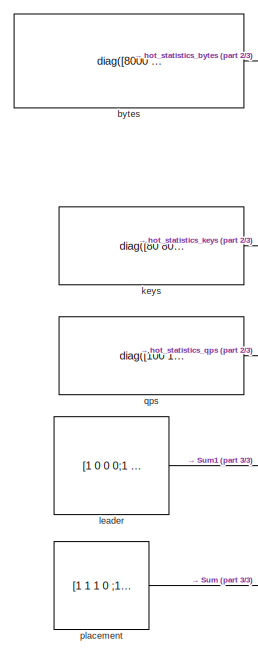
[diagram: root canvas - part 1/3, top left region]
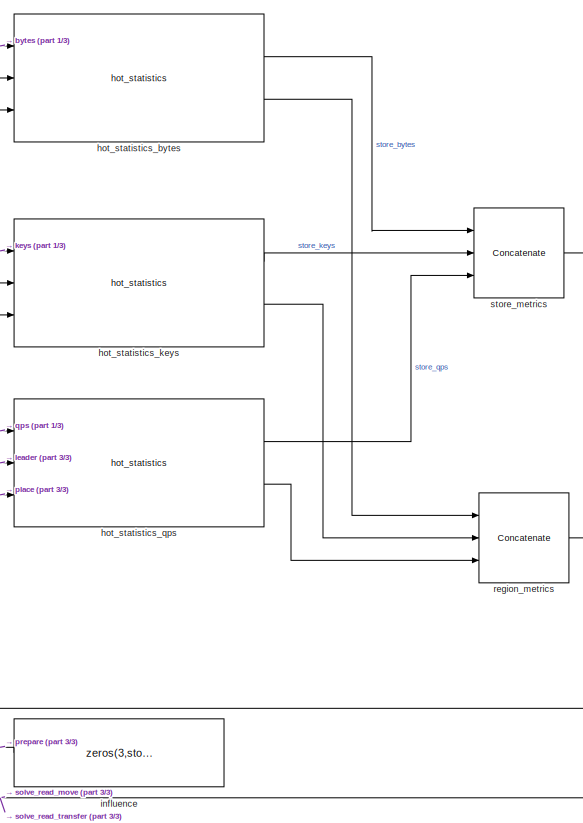
[diagram: root canvas - part 2/3, right side, full height]
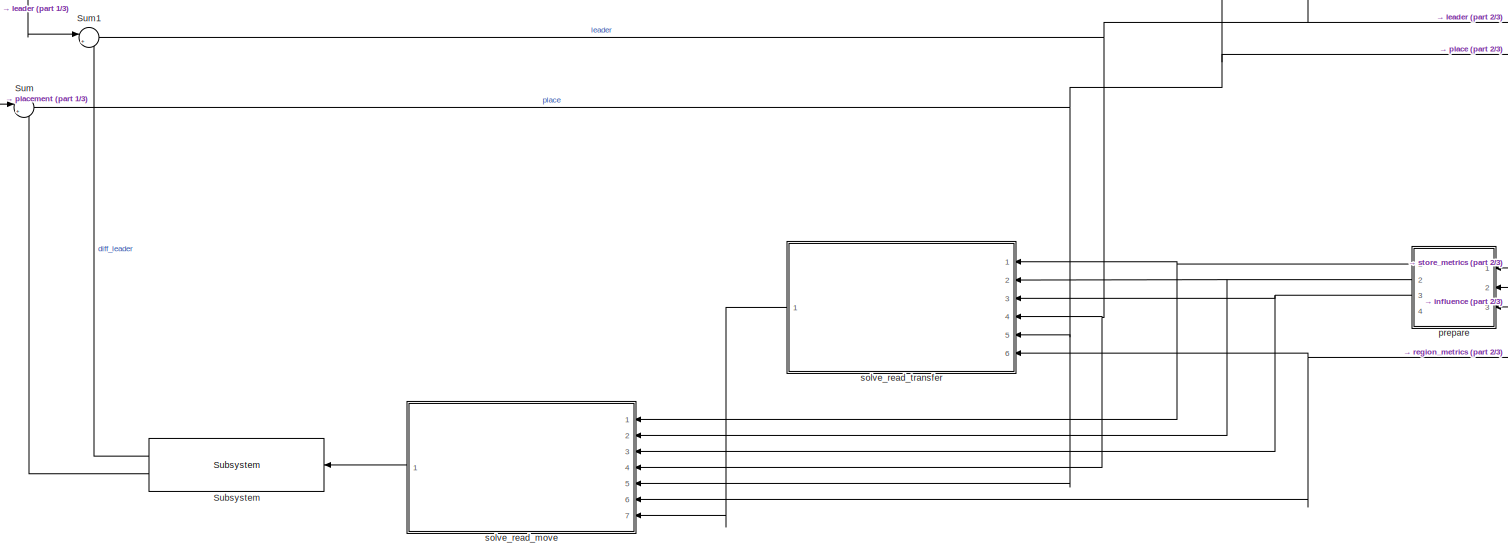
[diagram: root canvas - part 3/3, bottom center region]
MODEL slx_f86284a86a22
KIND model
CONFIG AbsTol = auto
CONFIG EnableMultiTasking = off
CONFIG FixedStep = auto
CONFIG MaxStep = auto
CONFIG MinStep = auto
CONFIG RelTol = 1e-3
CONFIG SampleTimeConstraint = Unconstrained
CONFIG SolverName = VariableStepAuto
CONFIG StartTime = 0.0
CONFIG StopTime = 10.0
WORKSPACE source: mxarray member
WORKSPACE region_count = 6
WORKSPACE store_count = 4
BLOCK [Reference] Subsystem  REF=pingcap/Subsystem  (lib defined in slx_86c26b565c1c)
  NameLocation = top
  Ports = [1, 2]
  SourceBlock = pingcap/Subsystem
BLOCK [Sum] Sum
  Inputs = |++
  Ports = [2, 1]
BLOCK [Sum] Sum1
  Inputs = |++
  Ports = [2, 1]
BLOCK [Constant] bytes
  Value = diag([8000 8000 8000  10000 10000 10000])
  VectorParams1D = off
BLOCK [Reference] hot_statistics_bytes  REF=pingcap/hot_statistics  (lib defined in slx_86c26b565c1c)
  Ports = [3, 2]
  SourceBlock = pingcap/hot_statistics
BLOCK [Reference] hot_statistics_keys  REF=pingcap/hot_statistics  (lib defined in slx_86c26b565c1c)
  Ports = [3, 2]
  SourceBlock = pingcap/hot_statistics
BLOCK [Reference] hot_statistics_qps  REF=pingcap/hot_statistics  (lib defined in slx_86c26b565c1c)
  Ports = [3, 2]
  SourceBlock = pingcap/hot_statistics
BLOCK [Constant] influence
  NameLocation = top
  Value = zeros(3,store_count)
  VectorParams1D = off
BLOCK [Constant] keys
  Value = diag([80 80 80 100 100 100])
  VectorParams1D = off
BLOCK [Constant] leader
  Value = [1 0 0 0;1 0 0 0;1 0 0 0;0 1 0 0;0 1 0 0;0 1 0 0]
  VectorParams1D = off
BLOCK [Constant] placement
  Value = [1 1 1 0 ;1 1 1 0 ;1 1 1 0 ;1 1 1 0;1 1 1 0;1 1 1 0]
  VectorParams1D = off
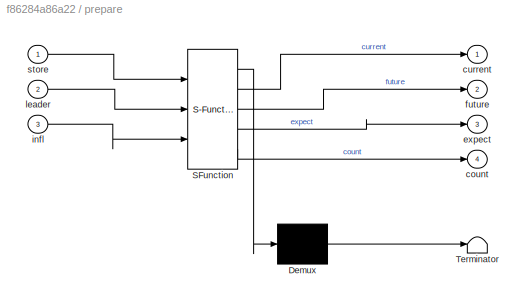
BLOCK [SubSystem] prepare
  ErrorFcn = Stateflow.Translate.translate
  NameLocation = top
  PermitHierarchicalResolution = ExplicitOnly
  Ports = [3, 4]
  RequestExecContextInheritance = off
  SFBlockType = MATLAB Function
  TreatAsAtomicUnit = on
BLOCK [Demux] prepare/ Demux 
  Outputs = 1
  Ports = [1, 1]
BLOCK [S-Function] prepare/ SFunction 
  EnableBusSupport = on
  FunctionName = sf_sfun
  PortCounts = [3 5]
  Ports = [3, 5]
  SFcnIsStateOwnerBlock = off
  SFunctionDeploymentMode = off
  Tag = Stateflow S-Function 2
BLOCK [Terminator] prepare/ Terminator 
BLOCK [Outport] prepare/count
  Port = 4
BLOCK [Outport] prepare/current
BLOCK [Outport] prepare/expect
  Port = 3
BLOCK [Outport] prepare/future
  Port = 2
BLOCK [Inport] prepare/infl
  Port = 3
BLOCK [Inport] prepare/leader
  Port = 2
BLOCK [Inport] prepare/store
BLOCK [Constant] qps
  Value = diag([100 100 100 80 80 80])
  VectorParams1D = off
BLOCK [Concatenate] region_metrics
  Mode = Multidimensional array
  NumInputs = 3
  Ports = [3, 1]
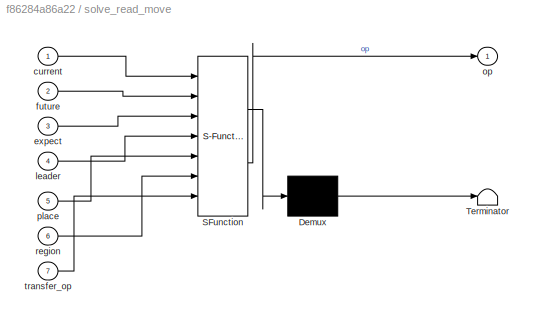
BLOCK [SubSystem] solve_read_move
  ErrorFcn = Stateflow.Translate.translate
  NameLocation = top
  PermitHierarchicalResolution = ExplicitOnly
  Ports = [7, 1]
  RequestExecContextInheritance = off
  SFBlockType = MATLAB Function
  TreatAsAtomicUnit = on
BLOCK [Demux] solve_read_move/ Demux 
  Outputs = 1
  Ports = [1, 1]
BLOCK [S-Function] solve_read_move/ SFunction 
  EnableBusSupport = on
  FunctionName = sf_sfun
  PortCounts = [7 2]
  Ports = [7, 2]
  SFcnIsStateOwnerBlock = off
  SFunctionDeploymentMode = off
  Tag = Stateflow S-Function 4
BLOCK [Terminator] solve_read_move/ Terminator 
BLOCK [Inport] solve_read_move/current
BLOCK [Inport] solve_read_move/expect
  Port = 3
BLOCK [Inport] solve_read_move/future
  Port = 2
BLOCK [Inport] solve_read_move/leader
  Port = 4
BLOCK [Outport] solve_read_move/op
BLOCK [Inport] solve_read_move/place
  Port = 5
BLOCK [Inport] solve_read_move/region
  Port = 6
BLOCK [Inport] solve_read_move/transfer_op
  Port = 7
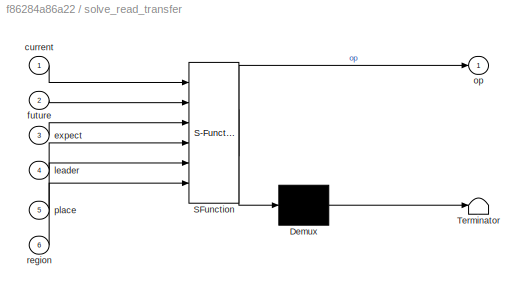
BLOCK [SubSystem] solve_read_transfer
  ErrorFcn = Stateflow.Translate.translate
  NameLocation = top
  PermitHierarchicalResolution = ExplicitOnly
  Ports = [6, 1]
  RequestExecContextInheritance = off
  SFBlockType = MATLAB Function
  TreatAsAtomicUnit = on
BLOCK [Demux] solve_read_transfer/ Demux 
  Outputs = 1
  Ports = [1, 1]
BLOCK [S-Function] solve_read_transfer/ SFunction 
  EnableBusSupport = on
  FunctionName = sf_sfun
  PortCounts = [6 2]
  Ports = [6, 2]
  SFcnIsStateOwnerBlock = off
  SFunctionDeploymentMode = off
  Tag = Stateflow S-Function 3
BLOCK [Terminator] solve_read_transfer/ Terminator 
BLOCK [Inport] solve_read_transfer/current
BLOCK [Inport] solve_read_transfer/expect
  Port = 3
BLOCK [Inport] solve_read_transfer/future
  Port = 2
BLOCK [Inport] solve_read_transfer/leader
  Port = 4
BLOCK [Outport] solve_read_transfer/op
BLOCK [Inport] solve_read_transfer/place
  Port = 5
BLOCK [Inport] solve_read_transfer/region
  Port = 6
BLOCK [Concatenate] store_metrics
  Mode = Multidimensional array
  NumInputs = 3
  Ports = [3, 1]
LINE Subsystem:1 -> Sum1:2
LINE Subsystem:2 -> Sum:2
NET Sum1:1 -> hot_statistics_bytes:2, hot_statistics_keys:2, hot_statistics_qps:2, prepare:2, solve_read_move:4, solve_read_transfer:4
NET Sum:1 -> hot_statistics_bytes:3, hot_statistics_keys:3, hot_statistics_qps:3, solve_read_move:5, solve_read_transfer:5
LINE bytes:1 -> hot_statistics_bytes:1
LINE hot_statistics_bytes:1 -> store_metrics:1
LINE hot_statistics_bytes:2 -> region_metrics:1
LINE hot_statistics_keys:1 -> store_metrics:2
LINE hot_statistics_keys:2 -> region_metrics:2
LINE hot_statistics_qps:1 -> store_metrics:3
LINE hot_statistics_qps:2 -> region_metrics:3
LINE influence:1 -> prepare:3
LINE keys:1 -> hot_statistics_keys:1
LINE leader:1 -> Sum1:1
LINE placement:1 -> Sum:1
NET prepare:1 -> solve_read_move:1, solve_read_transfer:1
NET prepare:2 -> solve_read_move:2, solve_read_transfer:2
NET prepare:3 -> solve_read_move:3, solve_read_transfer:3
LINE qps:1 -> hot_statistics_qps:1
NET region_metrics:1 -> solve_read_move:6, solve_read_transfer:6
LINE solve_read_move:1 -> Subsystem:1
LINE solve_read_transfer:1 -> solve_read_move:7
LINE store_metrics:1 -> prepare:1
note: NET lines group one-source signal fan-out (src -> all destinations, sorted); 1:1 wires keep LINE
CHART prepare states=1 transitions=1
  STATE_LABEL 'eML_blk_kernel()'
  STATE_LABEL 'SCRIPT:\n\n%  计算current,future,expect\n%  store dims：bytes keys query\n%  count: hot region count in each store\nfunction [current,future,expect,count]= fcn(store,leader,infl)\ncurrent=store;\n%  计算store 每个维度的平均值\nexpect=mean(store,2);\nfuture=current+infl;\ncount=sum(leader);\nend\n'
CHART solve_read_transfer states=1 transitions=1
  STATE_LABEL 'eML_blk_kernel()'
  STATE_LABEL 'SCRIPT:\n%  generator transfer operator (srcStore,desStore,regionId）\nfunction op = fcn(current, future,expect,leader,place,region)\nsrc_tolerance_ratio=1.05;\ndes_tolerator_ratio=1.05;\n%  step 1: pick src ,the load must gt expect\nminLoad=min(current,future);\nmaxLoad=max(current,future);\n[n,m]=size(current);\nsrcs=zeros(1,m);\n\n%  pick src store\nfor i=1:m\n    pass=1;\n    for j=1:n\n        if minLoad(j,i...<+1196ch>'
CHART solve_read_move states=1 transitions=1
  STATE_LABEL 'eML_blk_kernel()'
  STATE_LABEL 'SCRIPT:\n%  generator transfer operator (srcStore,desStore,regionId）\nfunction op = fcn(current, future,expect,leader,place,region,transfer_op)\nif transfer_op(1)>0\n    op=transfer_op;\n    return \nend \nsrc_tolerance_ratio=1.05;\ndes_tolerator_ratio=1.05;\n%  step 1: pick src ,the load must gt expect\nminLoad=min(current,future);\nmaxLoad=max(current,future);\n[n,m]=size(current);\nsrcs=zeros(1,m);\n\n%  pick...<+1259ch>'
CHART  states=0 transitions=0
CHART  states=0 transitions=0
CHART  states=0 transitions=0
